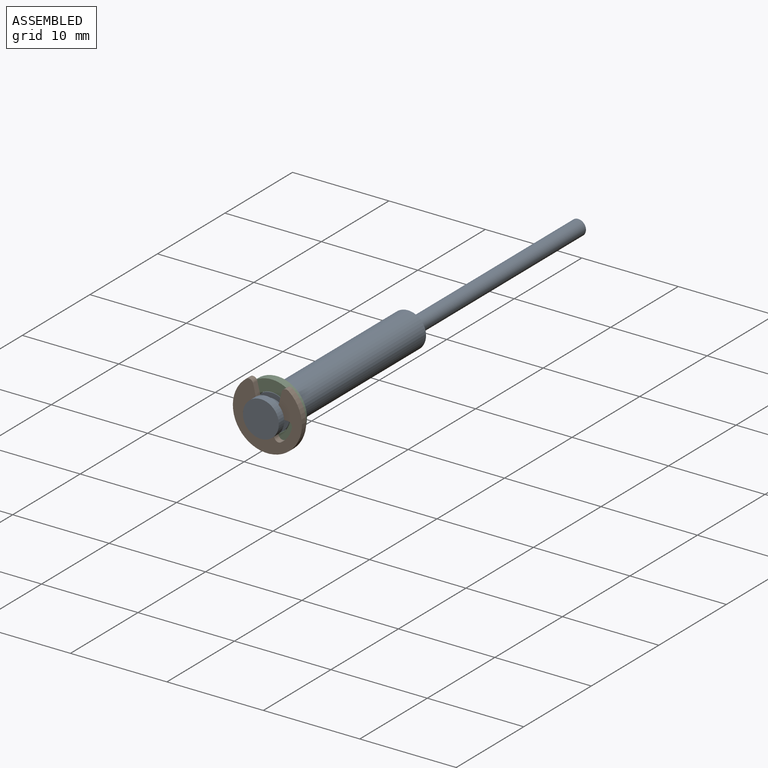
[diagram: assembled view]
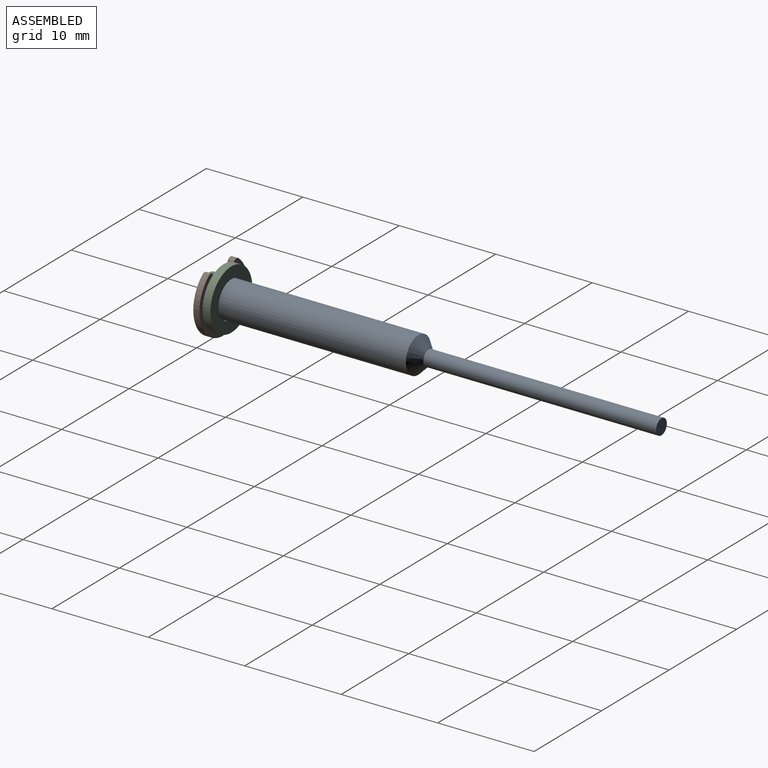
[diagram: assembled view, second angle]
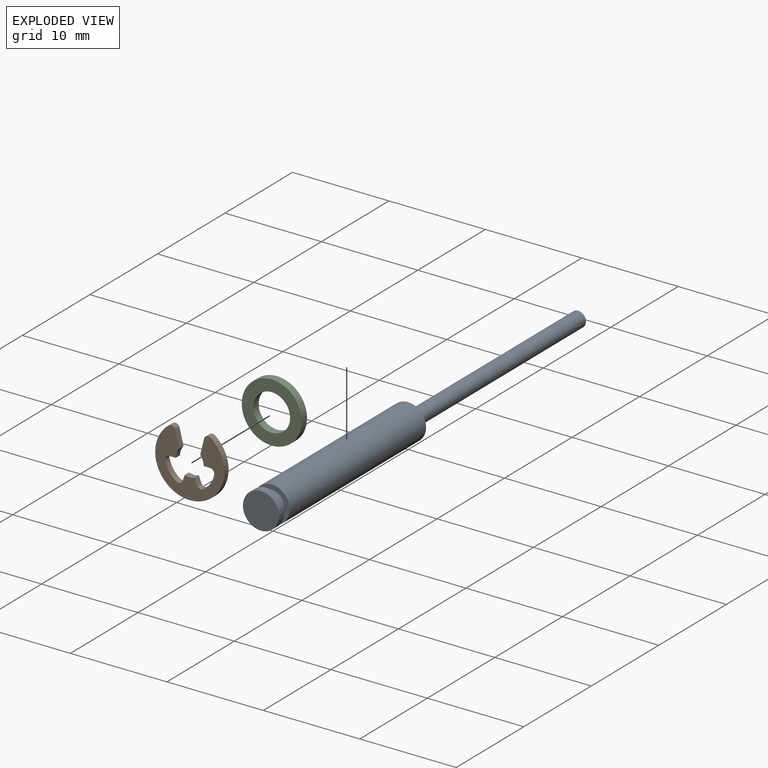
[diagram: exploded view]
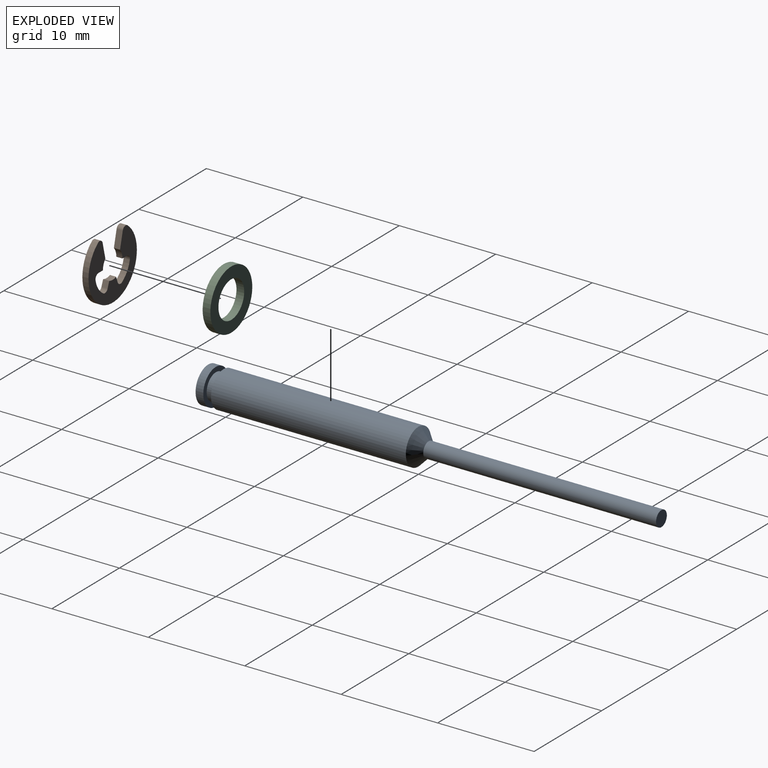
[diagram: exploded view, second angle]
ASSEMBLY  parts=3 mates=4
PART A: 9 faces, bbox 3.7x47x3.7 mm
  f0: cylinder r=1.86mm len=20.2mm, axis (0,-1,0), area 236.7mm2, adj f3,f6
  f1: plane 1.6x1.6mm, normal (0,1,0), area 2mm2, adj f2
  f2: cylinder r=0.8mm len=24.14mm, axis (0,-1,0), area 121.3mm2, adj f1,f3
  f3: cone r=0.8mm half-angle=45deg, axis (0,-1,0), area 12.6mm2, adj f0,f2
  f4: plane 3.73x3.73mm, normal (0,1,0), area 5.1mm2, adj f5,f8
  f5: cylinder r=1.36mm len=2.73mm, axis (0,1,0), area 6.9mm2, adj f4,f6
  f6: plane 3.73x3.73mm, normal (0,-1,0), area 5.1mm2, adj f0,f5
  f7: plane 3.73x3.73mm, normal (0,-1,0), area 10.9mm2, adj f8
  f8: cylinder r=1.86mm len=3.73mm, axis (0,-1,0), area 9.4mm2, adj f4,f7
PART B: 20 faces, bbox 0.6x7.2x6.5 mm
  f0: cylinder r=0.44mm len=0.7mm, axis (-1,0,0), area 0.6mm2, adj f2,f3,f14,f15
  f1: cylinder r=0.44mm len=0.7mm, axis (-1,0,0), area 0.6mm2, adj f2,f13,f14,f15
  f2: cylinder r=3.58mm len=7.16mm, axis (-1,0,0), area 11.3mm2, adj f0,f1,f14,f15
  f3: plane 1.63x0.64mm, normal (0,-0.97,0.24), area 1.1mm2, adj f0,f4,f14,f15
  f4: cylinder r=1.45mm len=0.96mm, axis (-1,0,0), area 0.7mm2, adj f3,f5,f14,f15
  f5: plane 0.66x0.64mm, normal (0,0,-1), area 0.4mm2, adj f4,f14,f15,f17
  f6: cylinder r=2.6mm len=1.65mm, axis (-1,0,0), area 1.3mm2, adj f14,f15,f17,f19
  f7: plane 0.64x0.61mm, normal (0,0.94,0.35), area 0.4mm2, adj f8,f14,f15,f19
  f8: cylinder r=1.45mm len=1.02mm, axis (-1,0,0), area 0.7mm2, adj f7,f9,f14,f15
  f9: plane 0.64x0.61mm, normal (0,-0.94,0.35), area 0.4mm2, adj f8,f14,f15,f18
  f10: cylinder r=2.6mm len=1.65mm, axis (-1,0,0), area 1.3mm2, adj f14,f15,f16,f18
  f11: plane 0.66x0.64mm, normal (0,0,-1), area 0.4mm2, adj f12,f14,f15,f16
  f12: cylinder r=1.45mm len=0.96mm, axis (-1,0,0), area 0.7mm2, adj f11,f13,f14,f15
  f13: plane 1.63x0.64mm, normal (0,0.97,0.24), area 1.1mm2, adj f1,f12,f14,f15
  f14: plane 7.16x6.51mm, normal (1,0,0), area 21.9mm2, adj f0,f1,f2,f3,f4,f5,f6,f7
  f15: plane 7.16x6.51mm, normal (-1,0,0), area 21.9mm2, adj f0,f1,f2,f3,f4,f5,f6,f7
  f16: cylinder r=0.44mm len=0.64mm, axis (-1,0,0), area 0.5mm2, adj f10,f11,f14,f15
  f17: cylinder r=0.44mm len=0.64mm, axis (-1,0,0), area 0.5mm2, adj f5,f6,f14,f15
  f18: cylinder r=0.44mm len=0.66mm, axis (-1,0,0), area 0.5mm2, adj f9,f10,f14,f15
  f19: cylinder r=0.44mm len=0.66mm, axis (-1,0,0), area 0.5mm2, adj f6,f7,f14,f15
PART C: 4 faces, bbox 6.2x0.8x6.2 mm
  f0: cylinder r=1.91mm len=3.82mm, axis (0,1,0), area 9.6mm2, adj f2,f3
  f1: cylinder r=3.1mm len=6.21mm, axis (0,1,0), area 15.6mm2, adj f2,f3
  f2: plane 6.21x6.21mm, normal (0,-1,0), area 18.8mm2, adj f0,f1
  f3: plane 6.21x6.21mm, normal (0,1,0), area 18.8mm2, adj f0,f1
PLACE A at identity fixed
PLACE B rot(axis=(0,0,-1),90deg) t=(0,-20.52,0)mm
PLACE C t=(0,-19.8,0)mm
MATE slider A.f0 <-> C.f0  axis (0,-1,0) through (0,-10.1,0)mm
MATE cylindrical B.f2 <-> A.f0  axis (0,1,0) through (0,-20.52,0)mm
MATE planar B.f15 <-> C.f1  axis (0,1,0) through (0,-20.2,-0.44)mm
MATE planar B.f15 <-> A.f0  axis (0,1,0) through (1.29,-20.2,1.77)mm
